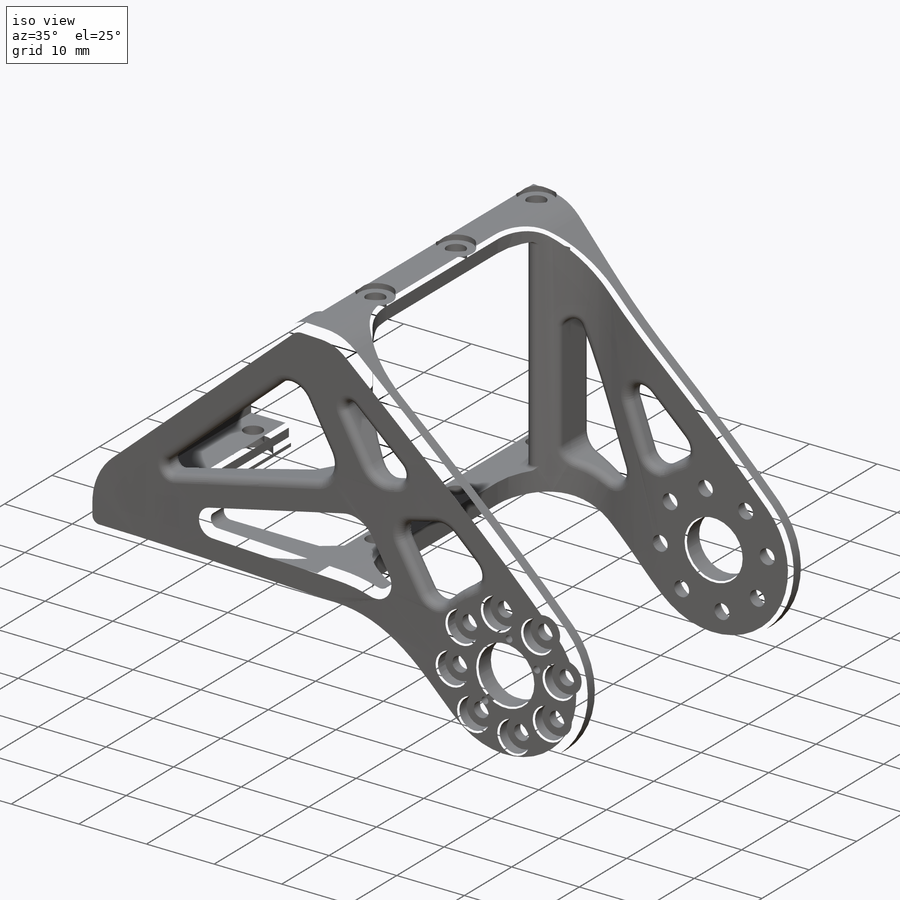
[diagram: iso view]
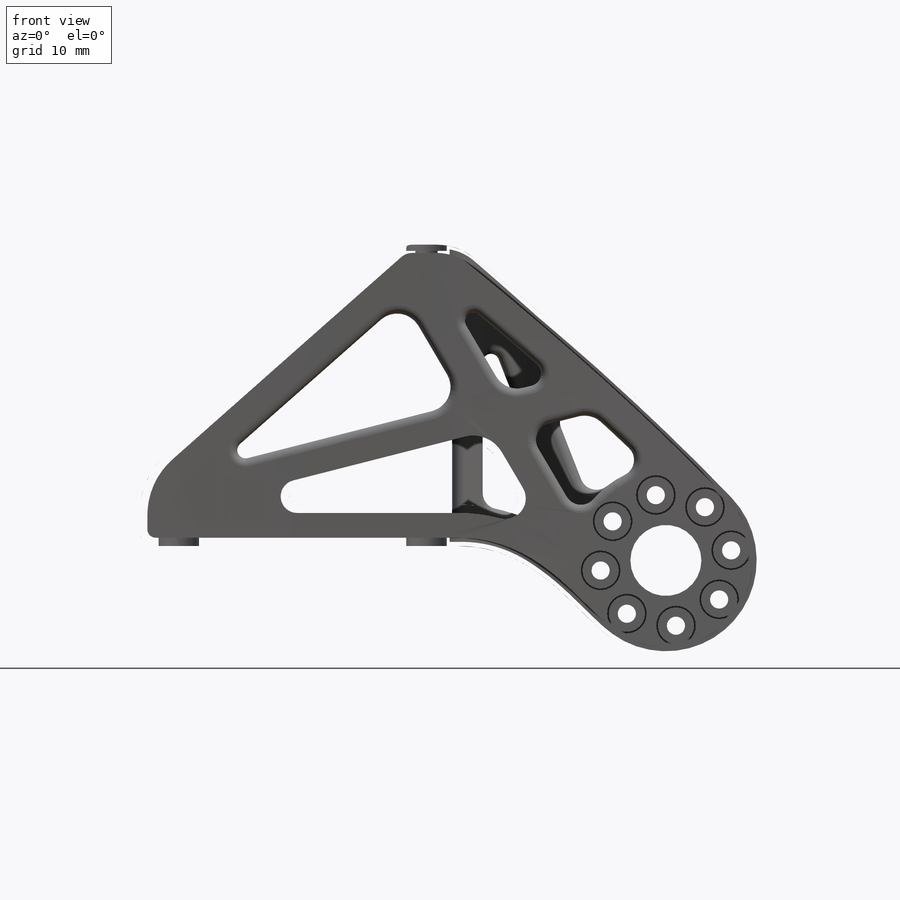
[diagram: front view]
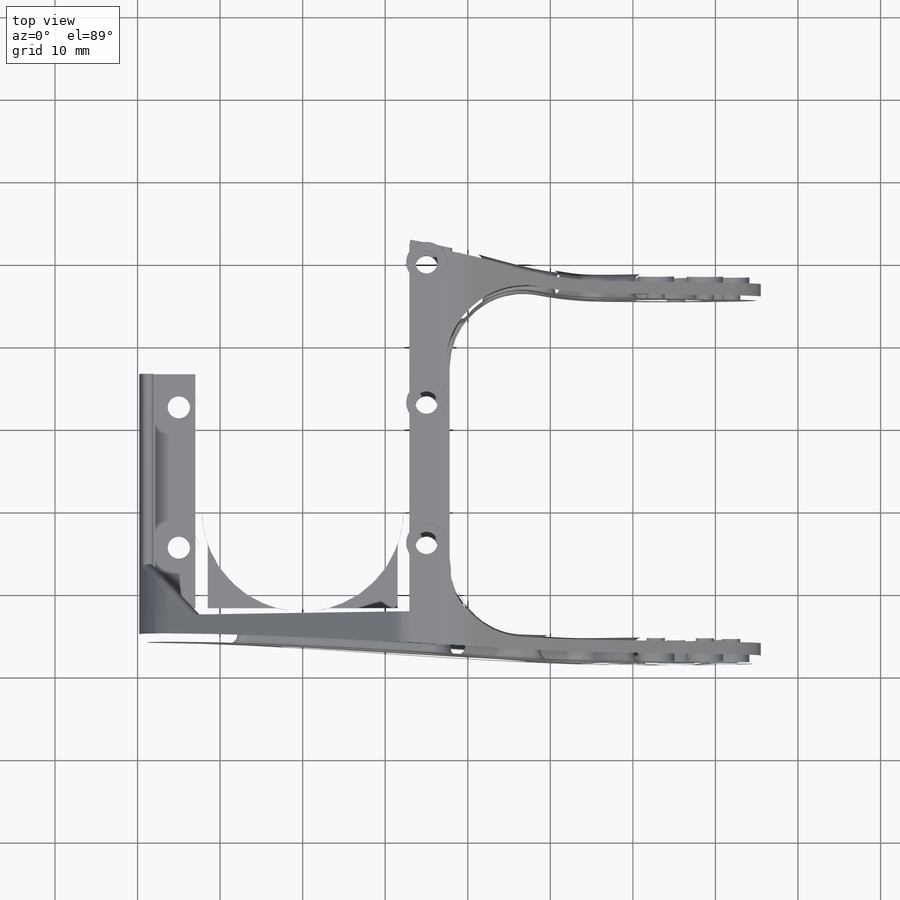
[diagram: top view]
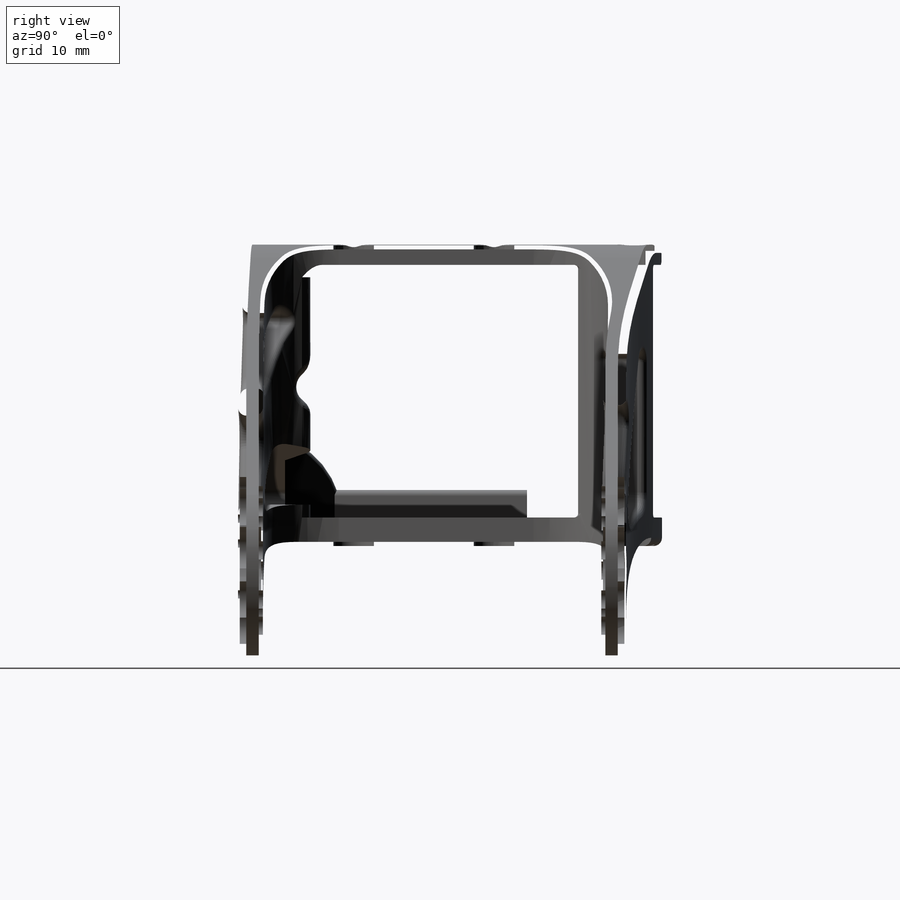
[diagram: right view]
SOLIDWORKS PART (.sldprt)
format: sldprt  version: not decoded by parser v0  size: 4,676,096 bytes
history: native  units: mm
features: sketch x39, fillet x18, plane x17, cut_extrude x12, hole x4, mirror x3, extrude x2, delete_body x2, material x1, chamfer x1 (+14 scaffold rows collapsed; 5 parser-record rows omitted)
feature tree (118):
  scaffold x14  (default folders/planes/origin — collapsed)
  material  "white_polyamide"
  plane  "Plan de face"
  plane  "Plan de dessus"
  plane  "Plan de droite"
  parser-record x5  (decoder bookkeeping rows leaked as tree rows — omitted from the tree; the rows remain in map.json)
  plane  "hip_z_horn_plan"  Offset=0mm
  sketch  "hip_z_horn_position_and_motor_orientation"  dims[c1.D1=22.0mm c1.D2=0.0mm c1.D3=40.0mm c1.D4=~34.498398mm c2.D4=360.0deg]
  plane  "hip_z_motor_symetric_plane"
  sketch  "hip_z_motor_top_dimension"  dims[D1=20.5mm D2=30.0mm D3=35.5mm D4=35.6mm D5=24.4mm D6=4.5mm]
  plane  "hip_z_middle_plane"
  sketch  "hip_z_motor_front_dimensions"  dims[D1=22.0mm D12=2.7mm D2=35.6mm D3=50.6mm D4=12.0mm D5=33.0mm D6=35.8mm D7=24.4mm D8=30.0mm D9=17.0mm D10=17.0mm D11=4.5mm D13=17.0mm D14=6.0mm]
  plane  "hip_z_top_plane"
  plane  "hip_y_top_plane"
  sketch  "thigh_shape"  dims[D1=41.0mm D2=40.2mm D3=3.0mm D4=23.5mm D5=24.0mm D6=28.0mm D7=2.0mm]
  plane  "hip_y_front_plane"
  sketch  "hip_y_front_shape"  dims[D1=61.1mm D2=13.0mm D3=7.5mm D4=30.0mm]
  sketch  "hip_x_position"  dims[c1.D1=~29.836873mm c2.D1=~1.748013deg c3.D1=35.5mm c3.D2=50.6mm c3.D3=12.0mm c3.D4=5.1mm c3.D5=6.0mm c3.D6=6.0mm c3.D7=5.1mm c3.D8=6.0mm c3.D9=5.1mm c3.D10=6.0mm c3.D11=5.1mm c4.D7=20.0deg c4.D9=20.0deg c5.D7=~66.78036mm c6.D7=~20.691139deg c7.D7=~54.812914mm c8.D7=~31.463059deg c9.D7=~67.403345mm c10.D7=25.0deg c10.D9=~6.666667deg c11.D9=~64.972441mm c12.D9=45.0deg c12.D10=1.5mm c12.D11=~99.488541mm c13.D10=87.0mm c13.D11=8.2mm c13.D12=16.2mm c14.D11=53.85mm c14.D12=8.2mm c15.D11=6.0mm c15.D12=20.0mm c15.D7=~19.264569mm c16.D7=25.0deg c16.D9=45.0deg c17.D9=~67.718517mm c18.D9=40.0deg c18.D11=5.5mm c18.D12=~47.074281mm c19.D12=~21.514974deg c20.D12=38.6mm c21.D12=~40.364537deg c22.D12=2.0mm c22.D13=12.0mm c22.D15=25.0deg c22.D17=40.0deg c22.D18=2.0mm c22.D19=26.0mm c23.D18=0.0mm c23.D19=41.0mm c23.D12=45.0mm c24.D19=~31.134379mm c24.D12=0.8mm c25.D19=~45.002778mm c25.D6=2.0 c25.D8=2.0 c25.D14=2.0 c25.D16=2.0]
  sketch  "motor_x_V_inclinaison"  dims[c1.D1=~58.92114mm c2.D1=30.0deg c2.D2=10.0mm c2.D3=20.0mm]
  plane  "pelvis_V_plane"
  plane  "hip_x_middle_plane"  Offset=5mm
  sketch  "hip_x_motor_front_dimensions"  dims[c1.D1=22.0mm c1.D11=~5.075485mm c1.D12=2.7mm c1.D2=35.6mm c1.D3=50.6mm c1.D4=12.0mm c1.D5=33.0mm c1.D6=35.8mm c1.D7=24.4mm c1.D8=30.0mm c1.D9=17.0mm c1.D10=17.0mm c2.D11=4.5mm c2.D13=17.0mm c2.D14=6.0mm]
  sketch  "hip_x_motor_lateral_dimensions"  dims[D1=35.5mm D2=4.5mm D3=15.0mm D4=22.0mm D5=41.0mm]
  sketch  "hip_x_horn_holes_positions"  dims[c1.D1=16.0mm c1.D4=2.0mm c1.D6=1.0mm c1.D7=6.0mm c1.D2=~108.050419mm c2.D2=0.0deg c2.D5=~7.77658mm c3.D5=60.0deg c3.D3=8.0]
  sketch  "l_hip_x_horn_oreintation_mark"  dims[D1=2.0]
  plane  "hip_x_horn_plane"
  sketch  "Sketch12"  dims[D1=2.0mm D2=1.0mm D3=3.0mm]
  sketch  "Sketch13"  dims[D1=1.0mm]
  sketch  "Sketch27"  dims[c1.D1=0.5mm c1.D2=1.0mm c1.D3=1.0mm c1.D4=~11.058437mm c2.D4=10.0deg c2.D5=2.0mm]
  extrude  "Boss-Extrude5"  Depth=40mm
  sketch  "Sketch29"  dims[c1.D1=3.0mm c1.D2=2.0mm c1.D3=25.0mm c2.D2=3.0mm c2.D3=35.0mm c3.D2=3.0mm c3.D4=~4.763571mm]
  cut_extrude  "Cut-Extrude11"  [1 undecoded]
  sketch  "Sketch31"  dims[D1=3.0mm D2=3.0mm]
  cut_extrude  "Cut-Extrude13"  [1 undecoded]
  sketch  "Sketch33"  dims[c1.D1=5.0mm c2.D1=3.0mm c3.D1=30.0mm c3.D2=30.0mm]
  sketch  "Sketch34"  dims[D1=5.0mm D2=5.0mm]
  fillet  "Fillet15"  Radius=9mm
  sketch  "Sketch32"  dims[D1=0.3mm]
  cut_extrude  "Cut-Extrude14"  [1 undecoded]
  sketch  "Sketch46"  dims[c1.D2=0.8mm c1.D3=~8.352764mm c2.D3=~3.949868deg c3.D3=24.8mm c3.D2=0.8mm c4.D3=~10.516453mm c4.D1=0.0mm]
  extrude  "Boss-Extrude6"  [1 undecoded]
  fillet  "Fillet31"  Radius=2mm
  sketch  "Sketch41"  dims[D1=3.0mm D2=3.0mm D3=3.0mm D4=3.0mm D5=3.0mm D6=2.0mm D7=2.0mm D8=2.0mm D9=1.5mm D10=1.5mm D11=1.0mm D12=1.0mm D13=1.0mm]
  cut_extrude  "Cut-Extrude21"  [1 undecoded]
  sketch  "Sketch39"  dims[D1=1.2mm D2=10.0mm]
  cut_extrude  "Cut-Extrude18"  [1 undecoded]
  delete_body  "Body-Delete1"
  sketch  "Sketch35"  dims[D1=4.0mm D2=4.0mm]
  cut_extrude  "Cut-Extrude16"  [1 undecoded]
  plane  "Plane7"  Offset=10mm
  sketch  "Sketch36"  dims[D1=8.2mm]
  cut_extrude  "Cut-Extrude17"  [1 undecoded]
  hole  "CBORE for M2 Pan Head Machine Screw1"  Diameter=2.2mm Depth=55.371104mm
  sketch  "Sketch25"
  sketch  "Sketch24"  dims[hole-wizard template sketch: 42 standard entries collapsed; hole parameters kept: c12.Thru Hole Depth=~55.371104mm c12.C'Bore Dia.=4.4mm c12.C'Bore Depth=8.7mm]
  mirror  "Mirror1"
  plane  "Plane8"
  plane  "Plane9"  Offset=10mm
  hole  "CBORE for M2.5 Pan Head Machine Screw1"  Diameter=2.7mm Depth=43.478794mm
  sketch  "Sketch38"
  sketch  "Sketch37"  dims[hole-wizard template sketch: 42 standard entries collapsed; hole parameters kept: c12.Thru Hole Depth=~43.478794mm c12.C'Bore Dia.=4.9mm c12.C'Bore Depth=8.0mm]
  mirror  "Mirror2"
  sketch  "Sketch45"  dims[D1=4.0mm]
  cut_extrude  "Cut-Extrude25"  [1 undecoded]
  sketch  "Sketch43"  dims[c1.D1=8.2mm c1.D2=1.0mm c2.D1=1.0mm]
  cut_extrude  "Cut-Extrude22"  Depth=1.5mm
  sketch  "Sketch53"  dims[c1.D1=6.0mm c1.D2=3.0mm c1.D3=3.0mm c1.D4=16.8mm c2.D1=4.0mm]
  cut_extrude  "Poppy_right_trademark"  Depth=1mm
  fillet  "Fillet8"  Radius=1mm
  fillet  "Fillet5"  Radius=10mm
  fillet  "Fillet6"  Radius=7mm
  fillet  "Fillet7"  Radius=2mm
  fillet  "Fillet11"  Radius=3mm
  chamfer  "Chamfer1"  Distance=1mm Angle=45deg
  fillet  "Fillet23"  Radius=0.5mm
  fillet  "Fillet16"  Radius=1mm
  fillet  "Fillet19"  Radius=1mm
  fillet  "Fillet20"  Radius=0.5mm
  fillet  "Fillet21"  Radius=0.5mm
  fillet  "Fillet22"  Radius=0.2mm
  fillet  "Fillet26"  Radius=1.5mm
  fillet  "Fillet28"  Radius=1mm
  fillet  "Fillet29"  Radius=0.5mm
  fillet  "Fillet34"  Radius=0.7mm
  plane  "symetrical_plane"
  mirror  "Mirror4"
  delete_body  "Body-Delete2"
  sketch  "Sketch47"  dims[c1.D1=2.0mm c1.D3=1.0mm c1.D4=6.0mm c1.D2=16.0mm c2.D2=60.0deg c2.D1=2.0]
  sketch  "Sketch44"  dims[D1=2.0]
  cut_extrude  "Cut-Extrude24"  Depth=1.5mm
  plane  "Plane10"  Offset=10mm
  hole  "CBORE for M2 Pan Head Machine Screw2"  Diameter=2.2mm Depth=56.658654mm
  sketch  "Sketch49"
  sketch  "Sketch48"  dims[hole-wizard template sketch: 42 standard entries collapsed; hole parameters kept: c12.Thru Hole Depth=~56.658654mm c12.C'Bore Dia.=4.3mm c12.C'Bore Depth=1.7mm]
  hole  "CBORE for M2 Pan Head Machine Screw3"  Diameter=2.2mm Depth=10mm
  sketch  "Sketch51"
  sketch  "Sketch50"  dims[hole-wizard template sketch: 42 standard entries collapsed; hole parameters kept: c12.Thru Hole Depth=10.0mm c12.C'Bore Dia.=4.4mm c12.C'Bore Depth=8.7mm]
  sketch  "Sketch52"  dims[D1=~136.211537mm]
  fillet  "Fillet35"  Radius=0.2mm
  sketch  "Sketch54"  dims[D1=3.0mm D2=3.0mm D3=16.8mm D4=4.0mm]
  cut_extrude  "Poppy_left_trademark"  Depth=1mm
decode coverage: 63 of 81 modeling features carry decoded parameters
note: ~ marks probable driven/reference dimensions
note: 9 parameter values undecoded
summary: no parameter record found for 9 features; Diameter pulled from absorbed wizard sketch
note: suppression state not decoded; provenance and decode notes live in map.json
